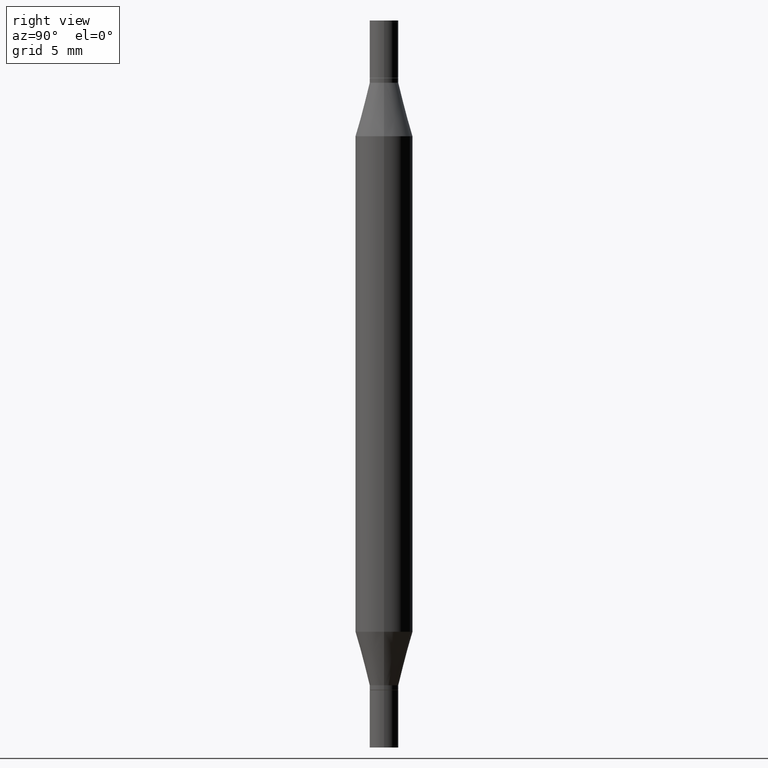
[diagram: clean part render]
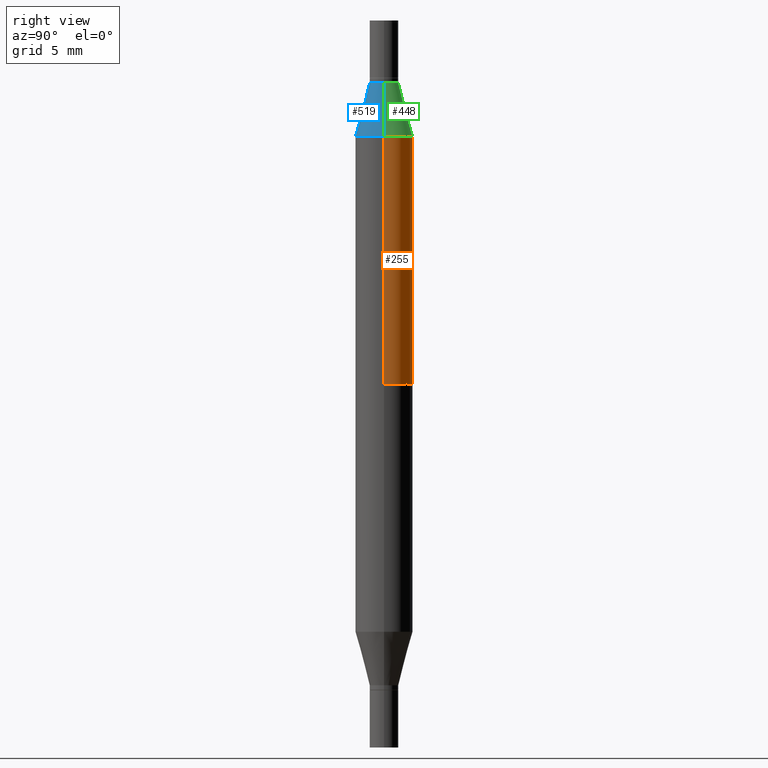
[diagram: same view with three faces highlighted in distinct colors, each labeled with its STEP entity id]
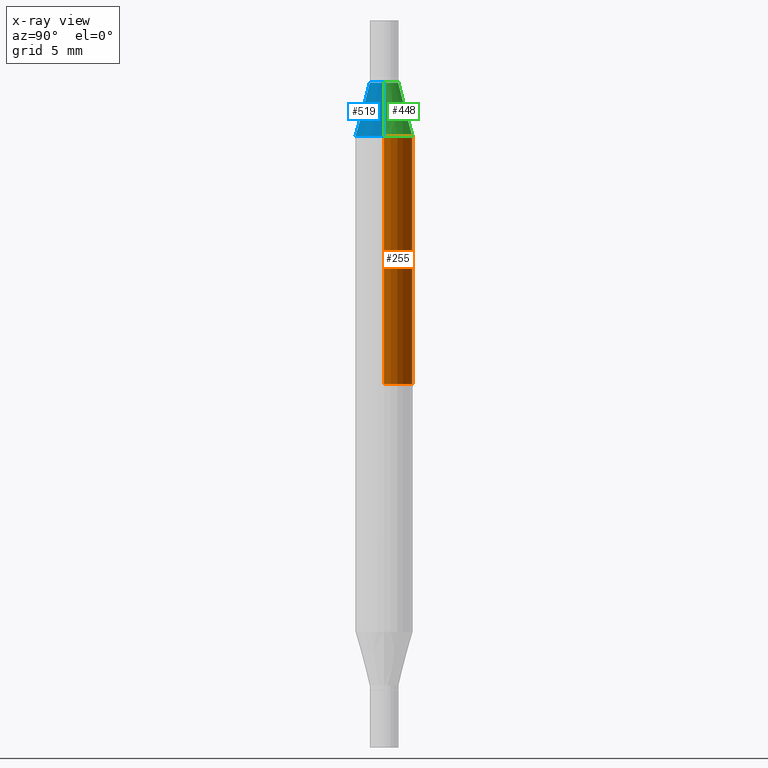
[diagram: x-ray of the same camera — body ghosted, the three highlighted faces saturated]
A machine part, right view with three faces highlighted in distinct colors.
The next image is the same camera in x-ray (body ghosted, the three faces saturated) — at least one of them is partly hidden behind the body in this view.
Their STEP definitions:

[orange] entity #255 — the highlighted cylindrical surface (edge-blend (fillet) strip) has radius 1.4999 mm, axis along (-0, -0, -1).
#29 = CARTESIAN_POINT ( 'NONE',  ( -0.05904999999999999832, -1.316359346049593314E-15, -0.7480499999999999927 ) ) ;
#64 = EDGE_CURVE ( 'NONE', #632, #801, #883, .T. ) ;
#75 = EDGE_LOOP ( 'NONE', ( #236, #283, #115, #831 ) ) ;
#115 = ORIENTED_EDGE ( 'NONE', *, *, #889, .T. ) ;
#145 = CIRCLE ( 'NONE', #185, 0.05904999999999999832 ) ;
#153 = DIRECTION ( 'NONE',  ( 1.000000000000000000, -6.982962677686265133E-15, 0.000000000000000000 ) ) ;
#180 = DIRECTION ( 'NONE',  ( 0.000000000000000000, 1.000000000000000000, -4.626330217890369336E-15 ) ) ;
#185 = AXIS2_PLACEMENT_3D ( 'NONE', #326, #764, #153 ) ;
#236 = ORIENTED_EDGE ( 'NONE', *, *, #558, .F. ) ;
#255 = ADVANCED_FACE ( 'NONE', ( #900 ), #528, .T. ) ;
#274 = CARTESIAN_POINT ( 'NONE',  ( 0.05904999999999999832, -5.636191362924657961E-15, -1.496099999999999985 ) ) ;
#282 = CARTESIAN_POINT ( 'NONE',  ( 0.000000000000000000, -5.223847416807283040E-15, -1.496099999999999985 ) ) ;
#283 = ORIENTED_EDGE ( 'NONE', *, *, #355, .F. ) ;
#326 = CARTESIAN_POINT ( 'NONE',  ( 3.076410765668157214E-29, -8.311408901143909150E-16, -0.2380954988232817371 ) ) ;
#348 = DIRECTION ( 'NONE',  ( -2.445468806185136877E-29, -3.491805094961123683E-15, -1.000000000000000000 ) ) ;
#355 = EDGE_CURVE ( 'NONE', #875, #470, #145, .T. ) ;
#420 = CARTESIAN_POINT ( 'NONE',  ( -0.05904999999999999832, -4.260284833459826385E-16, -0.2380954988232817371 ) ) ;
#422 = VECTOR ( 'NONE', #572, 39.37007874015748143 ) ;
#434 = DIRECTION ( 'NONE',  ( 1.000000000000000000, -6.982962677686273021E-15, 0.000000000000000000 ) ) ;
#457 = AXIS2_PLACEMENT_3D ( 'NONE', #650, #807, #180 ) ;
#470 = VERTEX_POINT ( 'NONE', #420 ) ;
#483 = CARTESIAN_POINT ( 'NONE',  ( 0.05904999999999999832, -2.133815698935376215E-15, -0.7480499999999999927 ) ) ;
#528 = CYLINDRICAL_SURFACE ( 'NONE', #800, 0.05904999999999999832 ) ;
#558 = EDGE_CURVE ( 'NONE', #470, #632, #793, .T. ) ;
#572 = DIRECTION ( 'NONE',  ( -2.445468806185136877E-29, -3.491805094961123683E-15, -1.000000000000000000 ) ) ;
#632 = VERTEX_POINT ( 'NONE', #29 ) ;
#650 = CARTESIAN_POINT ( 'NONE',  ( 1.829332940466791194E-29, -2.611802615521614830E-15, -0.7480499999999999927 ) ) ;
#707 = VECTOR ( 'NONE', #348, 39.37007874015748143 ) ;
#719 = CARTESIAN_POINT ( 'NONE',  ( -0.05904999999999999832, -4.818735010038875060E-15, -1.496099999999999985 ) ) ;
#764 = DIRECTION ( 'NONE',  ( 2.445468806185136597E-29, 3.491805094961124077E-15, 1.000000000000000000 ) ) ;
#793 = LINE ( 'NONE', #719, #422 ) ;
#800 = AXIS2_PLACEMENT_3D ( 'NONE', #282, #812, #434 ) ;
#801 = VERTEX_POINT ( 'NONE', #483 ) ;
#807 = DIRECTION ( 'NONE',  ( -0.000000000000000000, -3.491643216902134830E-15, -1.000000000000000000 ) ) ;
#812 = DIRECTION ( 'NONE',  ( -2.445468806185136597E-29, -3.491805094961124077E-15, -1.000000000000000000 ) ) ;
#814 = CARTESIAN_POINT ( 'NONE',  ( 0.05904999999999999832, -1.243484836231765441E-15, -0.2380954988232817371 ) ) ;
#831 = ORIENTED_EDGE ( 'NONE', *, *, #64, .F. ) ;
#864 = LINE ( 'NONE', #274, #707 ) ;
#875 = VERTEX_POINT ( 'NONE', #814 ) ;
#883 = CIRCLE ( 'NONE', #457, 0.05904999999999999832 ) ;
#889 = EDGE_CURVE ( 'NONE', #875, #801, #864, .T. ) ;
#900 = FACE_OUTER_BOUND ( 'NONE', #75, .T. ) ;

[blue] entity #519 — the highlighted conical surface has half-angle 15 deg.
#16 = DIRECTION ( 'NONE',  ( 2.445468806185136597E-29, 3.491805094961124077E-15, 1.000000000000000000 ) ) ;
#42 = DIRECTION ( 'NONE',  ( 0.2588190451025219607, -5.180148453816010357E-15, -0.9659258262890679791 ) ) ;
#61 = AXIS2_PLACEMENT_3D ( 'NONE', #653, #627, #94 ) ;
#94 = DIRECTION ( 'NONE',  ( 1.000000000000000000, -6.982962677686265133E-15, 0.000000000000000000 ) ) ;
#116 = AXIS2_PLACEMENT_3D ( 'NONE', #954, #16, #755 ) ;
#278 = VERTEX_POINT ( 'NONE', #319 ) ;
#306 = VERTEX_POINT ( 'NONE', #307 ) ;
#307 = CARTESIAN_POINT ( 'NONE',  ( -0.02954999999999991661, -2.275696666105042854E-16, -0.1280000000000001137 ) ) ;
#319 = CARTESIAN_POINT ( 'NONE',  ( 0.02954999999999991661, -6.530554135165988789E-16, -0.1280000000000001137 ) ) ;
#336 = ORIENTED_EDGE ( 'NONE', *, *, #530, .F. ) ;
#338 = CARTESIAN_POINT ( 'NONE',  ( -0.02954999999999991661, -2.439811505568221169E-16, -0.1280000000000001137 ) ) ;
#344 = LINE ( 'NONE', #338, #691 ) ;
#406 = AXIS2_PLACEMENT_3D ( 'NONE', #885, #724, #474 ) ;
#420 = CARTESIAN_POINT ( 'NONE',  ( -0.05904999999999999832, -4.260284833459826385E-16, -0.2380954988232817371 ) ) ;
#432 = FACE_OUTER_BOUND ( 'NONE', #920, .T. ) ;
#470 = VERTEX_POINT ( 'NONE', #420 ) ;
#474 = DIRECTION ( 'NONE',  ( 1.000000000000000000, -6.982962677686265133E-15, 0.000000000000000000 ) ) ;
#488 = EDGE_CURVE ( 'NONE', #470, #875, #761, .T. ) ;
#519 = ADVANCED_FACE ( 'NONE', ( #432 ), #641, .T. ) ;
#530 = EDGE_CURVE ( 'NONE', #306, #278, #921, .T. ) ;
#571 = EDGE_CURVE ( 'NONE', #306, #470, #344, .T. ) ;
#578 = ORIENTED_EDGE ( 'NONE', *, *, #488, .T. ) ;
#586 = VECTOR ( 'NONE', #42, 39.37007874015748143 ) ;
#627 = DIRECTION ( 'NONE',  ( 2.445468806185136597E-29, 3.491805094961124077E-15, 1.000000000000000000 ) ) ;
#641 = CONICAL_SURFACE ( 'NONE', #406, 0.02954999999999991661, 0.2617993877991506846 ) ;
#653 = CARTESIAN_POINT ( 'NONE',  ( 3.076410765668157214E-29, -8.311408901143909150E-16, -0.2380954988232817371 ) ) ;
#691 = VECTOR ( 'NONE', #797, 39.37007874015748143 ) ;
#724 = DIRECTION ( 'NONE',  ( -2.445468806185136597E-29, -3.491805094961124077E-15, -1.000000000000000000 ) ) ;
#728 = LINE ( 'NONE', #870, #586 ) ;
#755 = DIRECTION ( 'NONE',  ( 1.000000000000000000, -6.982962677686265133E-15, 0.000000000000000000 ) ) ;
#761 = CIRCLE ( 'NONE', #61, 0.05904999999999999832 ) ;
#797 = DIRECTION ( 'NONE',  ( -0.2588190451025219607, -1.597197180879709199E-15, -0.9659258262890679791 ) ) ;
#814 = CARTESIAN_POINT ( 'NONE',  ( 0.05904999999999999832, -1.243484836231765441E-15, -0.2380954988232817371 ) ) ;
#853 = ORIENTED_EDGE ( 'NONE', *, *, #571, .T. ) ;
#870 = CARTESIAN_POINT ( 'NONE',  ( 0.02954999999999991661, -6.530554135165988789E-16, -0.1280000000000001137 ) ) ;
#875 = VERTEX_POINT ( 'NONE', #814 ) ;
#885 = CARTESIAN_POINT ( 'NONE',  ( 3.345645873741884627E-29, -4.467088663909703532E-16, -0.1280000000000001137 ) ) ;
#888 = ORIENTED_EDGE ( 'NONE', *, *, #964, .F. ) ;
#920 = EDGE_LOOP ( 'NONE', ( #336, #853, #578, #888 ) ) ;
#921 = CIRCLE ( 'NONE', #116, 0.02954999999999991661 ) ;
#954 = CARTESIAN_POINT ( 'NONE',  ( 3.345645873741884627E-29, -4.467088663909703532E-16, -0.1280000000000001137 ) ) ;
#964 = EDGE_CURVE ( 'NONE', #278, #875, #728, .T. ) ;

[green] entity #448 — the highlighted conical surface has half-angle 15 deg.
#23 = EDGE_LOOP ( 'NONE', ( #273, #533, #132, #624 ) ) ;
#42 = DIRECTION ( 'NONE',  ( 0.2588190451025219607, -5.180148453816010357E-15, -0.9659258262890679791 ) ) ;
#85 = AXIS2_PLACEMENT_3D ( 'NONE', #124, #588, #129 ) ;
#124 = CARTESIAN_POINT ( 'NONE',  ( 3.345645873741884627E-29, -4.467088663909703532E-16, -0.1280000000000001137 ) ) ;
#129 = DIRECTION ( 'NONE',  ( 1.000000000000000000, -6.982962677686265133E-15, 0.000000000000000000 ) ) ;
#132 = ORIENTED_EDGE ( 'NONE', *, *, #964, .T. ) ;
#145 = CIRCLE ( 'NONE', #185, 0.05904999999999999832 ) ;
#153 = DIRECTION ( 'NONE',  ( 1.000000000000000000, -6.982962677686265133E-15, 0.000000000000000000 ) ) ;
#185 = AXIS2_PLACEMENT_3D ( 'NONE', #326, #764, #153 ) ;
#206 = CONICAL_SURFACE ( 'NONE', #804, 0.02954999999999991661, 0.2617993877991506846 ) ;
#273 = ORIENTED_EDGE ( 'NONE', *, *, #571, .F. ) ;
#278 = VERTEX_POINT ( 'NONE', #319 ) ;
#280 = CARTESIAN_POINT ( 'NONE',  ( 3.345645873741884627E-29, -4.467088663909703532E-16, -0.1280000000000001137 ) ) ;
#285 = DIRECTION ( 'NONE',  ( 1.000000000000000000, -6.982962677686265133E-15, 0.000000000000000000 ) ) ;
#306 = VERTEX_POINT ( 'NONE', #307 ) ;
#307 = CARTESIAN_POINT ( 'NONE',  ( -0.02954999999999991661, -2.275696666105042854E-16, -0.1280000000000001137 ) ) ;
#319 = CARTESIAN_POINT ( 'NONE',  ( 0.02954999999999991661, -6.530554135165988789E-16, -0.1280000000000001137 ) ) ;
#326 = CARTESIAN_POINT ( 'NONE',  ( 3.076410765668157214E-29, -8.311408901143909150E-16, -0.2380954988232817371 ) ) ;
#338 = CARTESIAN_POINT ( 'NONE',  ( -0.02954999999999991661, -2.439811505568221169E-16, -0.1280000000000001137 ) ) ;
#344 = LINE ( 'NONE', #338, #691 ) ;
#355 = EDGE_CURVE ( 'NONE', #875, #470, #145, .T. ) ;
#408 = CIRCLE ( 'NONE', #85, 0.02954999999999991661 ) ;
#420 = CARTESIAN_POINT ( 'NONE',  ( -0.05904999999999999832, -4.260284833459826385E-16, -0.2380954988232817371 ) ) ;
#448 = ADVANCED_FACE ( 'NONE', ( #581 ), #206, .T. ) ;
#470 = VERTEX_POINT ( 'NONE', #420 ) ;
#533 = ORIENTED_EDGE ( 'NONE', *, *, #899, .F. ) ;
#571 = EDGE_CURVE ( 'NONE', #306, #470, #344, .T. ) ;
#581 = FACE_OUTER_BOUND ( 'NONE', #23, .T. ) ;
#586 = VECTOR ( 'NONE', #42, 39.37007874015748143 ) ;
#588 = DIRECTION ( 'NONE',  ( 2.445468806185136597E-29, 3.491805094961124077E-15, 1.000000000000000000 ) ) ;
#624 = ORIENTED_EDGE ( 'NONE', *, *, #355, .T. ) ;
#691 = VECTOR ( 'NONE', #797, 39.37007874015748143 ) ;
#728 = LINE ( 'NONE', #870, #586 ) ;
#764 = DIRECTION ( 'NONE',  ( 2.445468806185136597E-29, 3.491805094961124077E-15, 1.000000000000000000 ) ) ;
#797 = DIRECTION ( 'NONE',  ( -0.2588190451025219607, -1.597197180879709199E-15, -0.9659258262890679791 ) ) ;
#804 = AXIS2_PLACEMENT_3D ( 'NONE', #280, #871, #285 ) ;
#814 = CARTESIAN_POINT ( 'NONE',  ( 0.05904999999999999832, -1.243484836231765441E-15, -0.2380954988232817371 ) ) ;
#870 = CARTESIAN_POINT ( 'NONE',  ( 0.02954999999999991661, -6.530554135165988789E-16, -0.1280000000000001137 ) ) ;
#871 = DIRECTION ( 'NONE',  ( -2.445468806185136597E-29, -3.491805094961124077E-15, -1.000000000000000000 ) ) ;
#875 = VERTEX_POINT ( 'NONE', #814 ) ;
#899 = EDGE_CURVE ( 'NONE', #278, #306, #408, .T. ) ;
#964 = EDGE_CURVE ( 'NONE', #278, #875, #728, .T. ) ;